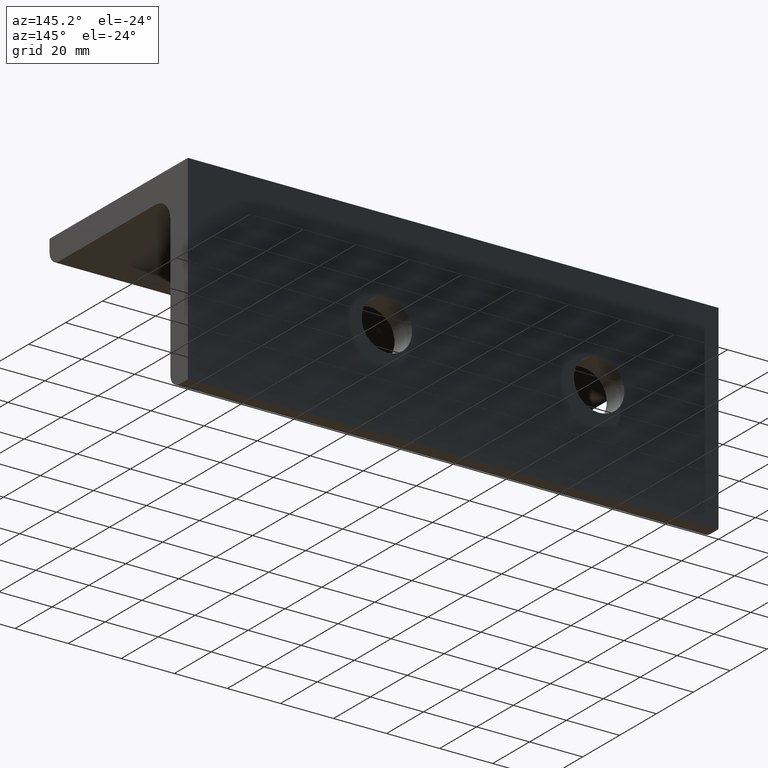
[diagram: clean part render]
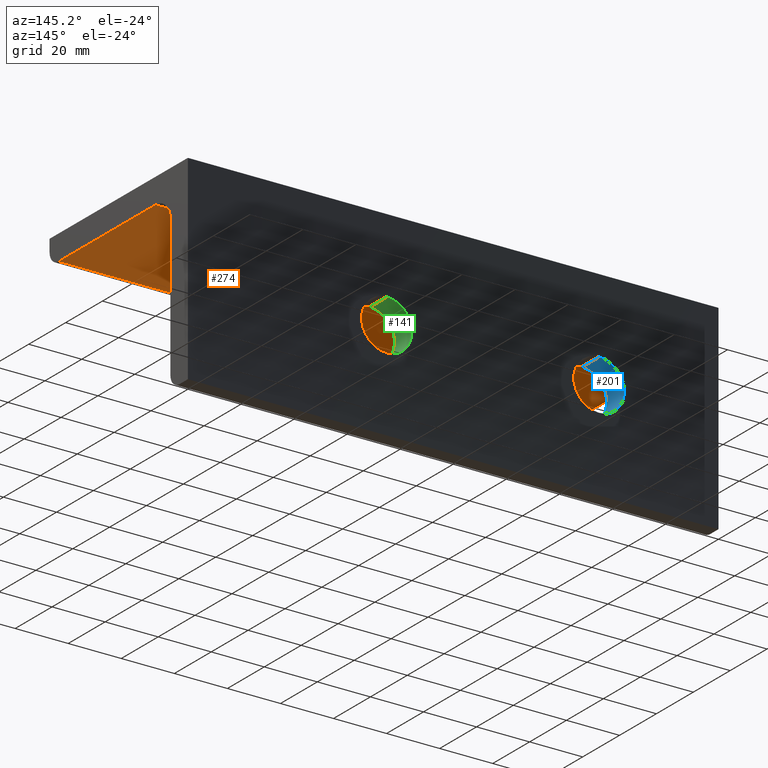
[diagram: same view with three faces highlighted in distinct colors, each labeled with its STEP entity id]
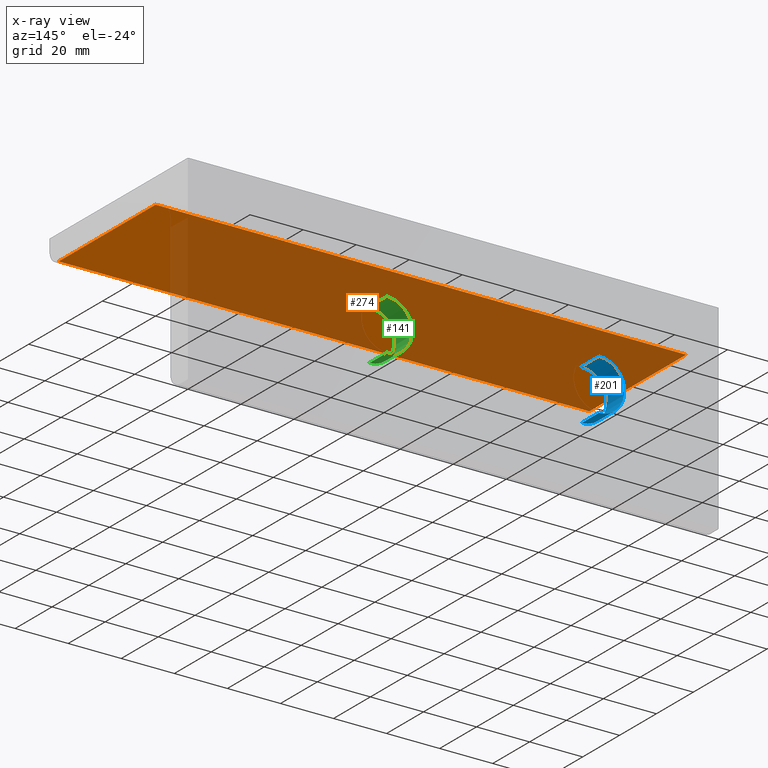
[diagram: x-ray of the same camera — body ghosted, the three highlighted faces saturated]
A machine part, auxiliary view with three faces highlighted in distinct colors.
The next image is the same camera in x-ray (body ghosted, the three faces saturated) — at least one of them is partly hidden behind the body in this view.
Their STEP definitions:

[orange] entity #274 — the highlighted planar face has unit normal (-0, 0, 1).
#3 = EDGE_CURVE ( 'NONE', #164, #5, #490, .T. ) ;
#5 = VERTEX_POINT ( 'NONE', #443 ) ;
#35 = FACE_OUTER_BOUND ( 'NONE', #139, .T. ) ;
#65 = AXIS2_PLACEMENT_3D ( 'NONE', #377, #373, #550 ) ;
#102 = DIRECTION ( 'NONE',  ( 1.000000000000000000, 3.061616997868383141E-16, -0.000000000000000000 ) ) ;
#117 = VECTOR ( 'NONE', #245, 1000.000000000000000 ) ;
#130 = CARTESIAN_POINT ( 'NONE',  ( 100.0000000000000000, -17.50000000000006395, -9.499999999999815259 ) ) ;
#132 = VECTOR ( 'NONE', #236, 1000.000000000000000 ) ;
#139 = EDGE_LOOP ( 'NONE', ( #500, #468, #173, #182 ) ) ;
#148 = EDGE_CURVE ( 'NONE', #381, #348, #447, .T. ) ;
#155 = VECTOR ( 'NONE', #169, 1000.000000000000000 ) ;
#156 = VECTOR ( 'NONE', #102, 1000.000000000000000 ) ;
#164 = VERTEX_POINT ( 'NONE', #242 ) ;
#169 = DIRECTION ( 'NONE',  ( 2.643388153869420311E-16, -1.000000000000000000, 1.040834085586084257E-14 ) ) ;
#173 = ORIENTED_EDGE ( 'NONE', *, *, #262, .F. ) ;
#182 = ORIENTED_EDGE ( 'NONE', *, *, #3, .T. ) ;
#199 = PLANE ( 'NONE',  #65 ) ;
#218 = LINE ( 'NONE', #130, #155 ) ;
#236 = DIRECTION ( 'NONE',  ( 1.000000000000000000, 3.061616997868383141E-16, -0.000000000000000000 ) ) ;
#242 = CARTESIAN_POINT ( 'NONE',  ( -100.0000000000000000, -17.50000000000012790, -9.499999999999815259 ) ) ;
#245 = DIRECTION ( 'NONE',  ( 2.643388153869420311E-16, -1.000000000000000000, 1.040834085586084257E-14 ) ) ;
#262 = EDGE_CURVE ( 'NONE', #164, #381, #380, .T. ) ;
#274 = ADVANCED_FACE ( 'NONE', ( #35 ), #199, .F. ) ;
#317 = EDGE_CURVE ( 'NONE', #5, #348, #218, .T. ) ;
#318 = CARTESIAN_POINT ( 'NONE',  ( -100.0000000000000000, -17.50000000000012790, -9.499999999999815259 ) ) ;
#322 = CARTESIAN_POINT ( 'NONE',  ( -99.99999999999998579, -70.00000000000011369, -9.499999999999271694 ) ) ;
#348 = VERTEX_POINT ( 'NONE', #476 ) ;
#373 = DIRECTION ( 'NONE',  ( -3.186635328391150975E-30, 1.040834085586084257E-14, 1.000000000000000000 ) ) ;
#377 = CARTESIAN_POINT ( 'NONE',  ( -100.0000000000000000, -17.50000000000012790, -9.499999999999815259 ) ) ;
#380 = LINE ( 'NONE', #553, #117 ) ;
#381 = VERTEX_POINT ( 'NONE', #515 ) ;
#443 = CARTESIAN_POINT ( 'NONE',  ( 100.0000000000000000, -17.50000000000006395, -9.499999999999815259 ) ) ;
#447 = LINE ( 'NONE', #322, #132 ) ;
#468 = ORIENTED_EDGE ( 'NONE', *, *, #148, .F. ) ;
#476 = CARTESIAN_POINT ( 'NONE',  ( 100.0000000000000142, -70.00000000000005684, -9.499999999999271694 ) ) ;
#490 = LINE ( 'NONE', #318, #156 ) ;
#500 = ORIENTED_EDGE ( 'NONE', *, *, #317, .T. ) ;
#515 = CARTESIAN_POINT ( 'NONE',  ( -99.99999999999998579, -70.00000000000011369, -9.499999999999271694 ) ) ;
#550 = DIRECTION ( 'NONE',  ( 0.000000000000000000, -1.000000000000000000, 1.040834085586084257E-14 ) ) ;
#553 = CARTESIAN_POINT ( 'NONE',  ( -100.0000000000000000, -17.50000000000012790, -9.499999999999815259 ) ) ;

[blue] entity #201 — the highlighted cylindrical surface (edge-blend (fillet) strip) has radius 9.5 mm, axis along (-0, 1, -0).
#19 = CARTESIAN_POINT ( 'NONE',  ( -55.00000000000000711, -2.940240643548956406E-13, -28.00000000000000000 ) ) ;
#21 = DIRECTION ( 'NONE',  ( -0.000000000000000000, 1.000000000000000000, -1.050085944124627333E-14 ) ) ;
#53 = EDGE_CURVE ( 'NONE', #94, #127, #108, .T. ) ;
#67 = CARTESIAN_POINT ( 'NONE',  ( -55.00000000000000711, -2.936321773791685689E-13, -28.00000000000000355 ) ) ;
#70 = AXIS2_PLACEMENT_3D ( 'NONE', #116, #501, #247 ) ;
#72 = VECTOR ( 'NONE', #442, 1000.000000000000000 ) ;
#86 = VERTEX_POINT ( 'NONE', #406 ) ;
#94 = VERTEX_POINT ( 'NONE', #276 ) ;
#108 = LINE ( 'NONE', #230, #251 ) ;
#116 = CARTESIAN_POINT ( 'NONE',  ( -55.00000000000000711, -3.937822290467351599E-13, -37.49999999999999289 ) ) ;
#127 = VERTEX_POINT ( 'NONE', #190 ) ;
#190 = CARTESIAN_POINT ( 'NONE',  ( -55.00000000000000711, -4.931485067628474561E-13, -46.99999999999997868 ) ) ;
#201 = ADVANCED_FACE ( 'NONE', ( #419 ), #292, .F. ) ;
#221 = DIRECTION ( 'NONE',  ( 0.000000000000000000, -1.059094332701630192E-14, -1.000000000000000000 ) ) ;
#230 = CARTESIAN_POINT ( 'NONE',  ( -55.00000000000000711, -4.935403937385747298E-13, -46.99999999999998579 ) ) ;
#232 = CIRCLE ( 'NONE', #497, 9.499999999999994671 ) ;
#247 = DIRECTION ( 'NONE',  ( 0.000000000000000000, 1.050085944124627649E-14, 1.000000000000000000 ) ) ;
#251 = VECTOR ( 'NONE', #21, 1000.000000000000000 ) ;
#276 = CARTESIAN_POINT ( 'NONE',  ( -55.00000000000000711, -9.500000000000508038, -46.99999999999988631 ) ) ;
#290 = ORIENTED_EDGE ( 'NONE', *, *, #53, .T. ) ;
#292 = CYLINDRICAL_SURFACE ( 'NONE', #70, 9.499999999999991118 ) ;
#294 = EDGE_CURVE ( 'NONE', #127, #505, #303, .T. ) ;
#303 = CIRCLE ( 'NONE', #507, 9.499999999999987566 ) ;
#315 = ORIENTED_EDGE ( 'NONE', *, *, #512, .F. ) ;
#323 = LINE ( 'NONE', #19, #72 ) ;
#338 = ORIENTED_EDGE ( 'NONE', *, *, #387, .T. ) ;
#387 = EDGE_CURVE ( 'NONE', #86, #94, #232, .T. ) ;
#406 = CARTESIAN_POINT ( 'NONE',  ( -55.00000000000000711, -9.500000000000307310, -27.99999999999990408 ) ) ;
#419 = FACE_OUTER_BOUND ( 'NONE', #517, .T. ) ;
#442 = DIRECTION ( 'NONE',  ( -0.000000000000000000, 1.000000000000000000, -1.050085944124627333E-14 ) ) ;
#457 = DIRECTION ( 'NONE',  ( -0.000000000000000000, 1.000000000000000000, -1.050085944124627333E-14 ) ) ;
#467 = CARTESIAN_POINT ( 'NONE',  ( -55.00000000000000711, -9.500000000000406786, -37.49999999999989342 ) ) ;
#483 = ORIENTED_EDGE ( 'NONE', *, *, #294, .T. ) ;
#497 = AXIS2_PLACEMENT_3D ( 'NONE', #467, #513, #221 ) ;
#501 = DIRECTION ( 'NONE',  ( -0.000000000000000000, 1.000000000000000000, -1.050085944124627333E-14 ) ) ;
#504 = DIRECTION ( 'NONE',  ( 0.000000000000000000, 1.050085944124627491E-14, 1.000000000000000000 ) ) ;
#505 = VERTEX_POINT ( 'NONE', #67 ) ;
#507 = AXIS2_PLACEMENT_3D ( 'NONE', #542, #457, #504 ) ;
#512 = EDGE_CURVE ( 'NONE', #86, #505, #323, .T. ) ;
#513 = DIRECTION ( 'NONE',  ( 3.061616997868383141E-16, -1.000000000000000000, 1.054051026355431351E-14 ) ) ;
#517 = EDGE_LOOP ( 'NONE', ( #338, #290, #483, #315 ) ) ;
#542 = CARTESIAN_POINT ( 'NONE',  ( -55.00000000000000711, -3.933903420710080378E-13, -37.49999999999999289 ) ) ;

[green] entity #141 — the highlighted cylindrical surface (edge-blend (fillet) strip) has radius 9.5 mm, axis along (-0, 1, -0).
#6 = DIRECTION ( 'NONE',  ( -0.000000000000000000, 1.000000000000000000, -1.050085944124627333E-14 ) ) ;
#12 = CARTESIAN_POINT ( 'NONE',  ( 24.99999999999999289, -2.936321773791686699E-13, -28.00000000000001066 ) ) ;
#20 = CIRCLE ( 'NONE', #316, 9.499999999999987566 ) ;
#31 = CARTESIAN_POINT ( 'NONE',  ( 24.99999999999999289, -9.500000000000483169, -46.99999999999988631 ) ) ;
#52 = VERTEX_POINT ( 'NONE', #31 ) ;
#71 = DIRECTION ( 'NONE',  ( -0.000000000000000000, 1.000000000000000000, -1.050085944124627333E-14 ) ) ;
#82 = AXIS2_PLACEMENT_3D ( 'NONE', #534, #71, #450 ) ;
#121 = DIRECTION ( 'NONE',  ( -0.000000000000000000, 1.000000000000000000, -1.050085944124627333E-14 ) ) ;
#125 = ORIENTED_EDGE ( 'NONE', *, *, #233, .F. ) ;
#141 = ADVANCED_FACE ( 'NONE', ( #283 ), #492, .F. ) ;
#142 = CARTESIAN_POINT ( 'NONE',  ( 24.99999999999999289, -9.500000000000282441, -27.99999999999991118 ) ) ;
#154 = CARTESIAN_POINT ( 'NONE',  ( 24.99999999999999289, -2.940240643548957416E-13, -28.00000000000000711 ) ) ;
#171 = EDGE_CURVE ( 'NONE', #52, #386, #410, .T. ) ;
#207 = LINE ( 'NONE', #154, #359 ) ;
#226 = AXIS2_PLACEMENT_3D ( 'NONE', #310, #6, #302 ) ;
#229 = ORIENTED_EDGE ( 'NONE', *, *, #531, .T. ) ;
#231 = CIRCLE ( 'NONE', #226, 9.499999999999987566 ) ;
#233 = EDGE_CURVE ( 'NONE', #523, #436, #207, .T. ) ;
#235 = DIRECTION ( 'NONE',  ( 0.000000000000000000, -1.059094332701630981E-14, -1.000000000000000000 ) ) ;
#239 = VECTOR ( 'NONE', #334, 1000.000000000000000 ) ;
#283 = FACE_OUTER_BOUND ( 'NONE', #489, .T. ) ;
#302 = DIRECTION ( 'NONE',  ( 0.000000000000000000, 1.050085944124627491E-14, 1.000000000000000000 ) ) ;
#310 = CARTESIAN_POINT ( 'NONE',  ( 24.99999999999999289, -3.933903420710081387E-13, -37.50000000000000000 ) ) ;
#316 = AXIS2_PLACEMENT_3D ( 'NONE', #530, #399, #235 ) ;
#334 = DIRECTION ( 'NONE',  ( -0.000000000000000000, 1.000000000000000000, -1.050085944124627333E-14 ) ) ;
#359 = VECTOR ( 'NONE', #121, 1000.000000000000000 ) ;
#375 = CARTESIAN_POINT ( 'NONE',  ( 24.99999999999999289, -4.935403937385748307E-13, -46.99999999999998579 ) ) ;
#376 = ORIENTED_EDGE ( 'NONE', *, *, #412, .T. ) ;
#378 = ORIENTED_EDGE ( 'NONE', *, *, #171, .T. ) ;
#386 = VERTEX_POINT ( 'NONE', #522 ) ;
#399 = DIRECTION ( 'NONE',  ( 3.061616997868383141E-16, -1.000000000000000000, 1.054051026355431351E-14 ) ) ;
#410 = LINE ( 'NONE', #375, #239 ) ;
#412 = EDGE_CURVE ( 'NONE', #386, #436, #231, .T. ) ;
#436 = VERTEX_POINT ( 'NONE', #12 ) ;
#450 = DIRECTION ( 'NONE',  ( 0.000000000000000000, 1.050085944124627649E-14, 1.000000000000000000 ) ) ;
#489 = EDGE_LOOP ( 'NONE', ( #229, #378, #376, #125 ) ) ;
#492 = CYLINDRICAL_SURFACE ( 'NONE', #82, 9.499999999999991118 ) ;
#522 = CARTESIAN_POINT ( 'NONE',  ( 24.99999999999999289, -4.931485067628475571E-13, -46.99999999999998579 ) ) ;
#523 = VERTEX_POINT ( 'NONE', #142 ) ;
#530 = CARTESIAN_POINT ( 'NONE',  ( 24.99999999999999289, -9.500000000000383693, -37.49999999999990052 ) ) ;
#531 = EDGE_CURVE ( 'NONE', #523, #52, #20, .T. ) ;
#534 = CARTESIAN_POINT ( 'NONE',  ( 24.99999999999999289, -3.937822290467352609E-13, -37.50000000000000000 ) ) ;